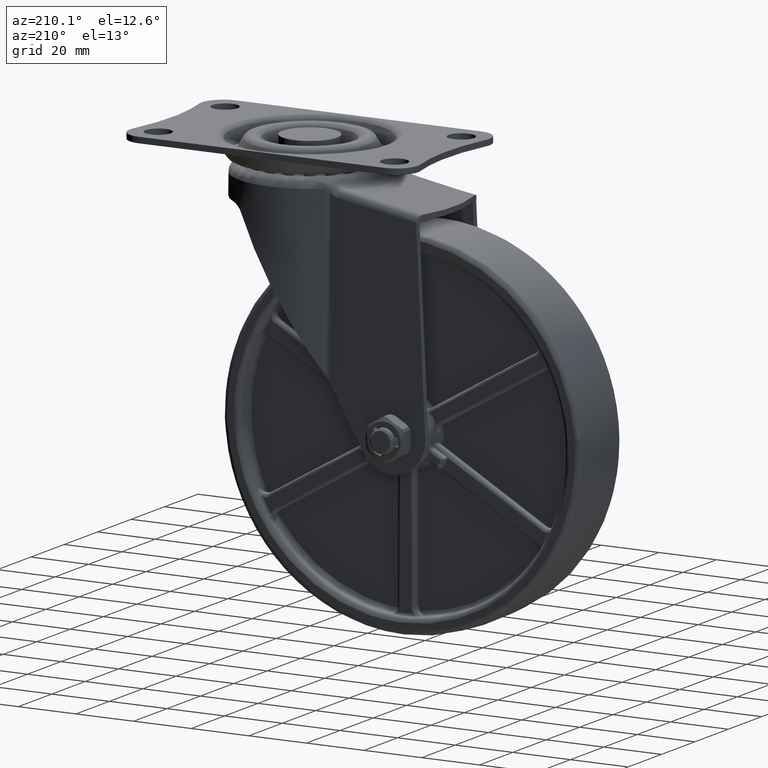
[diagram: clean part render]
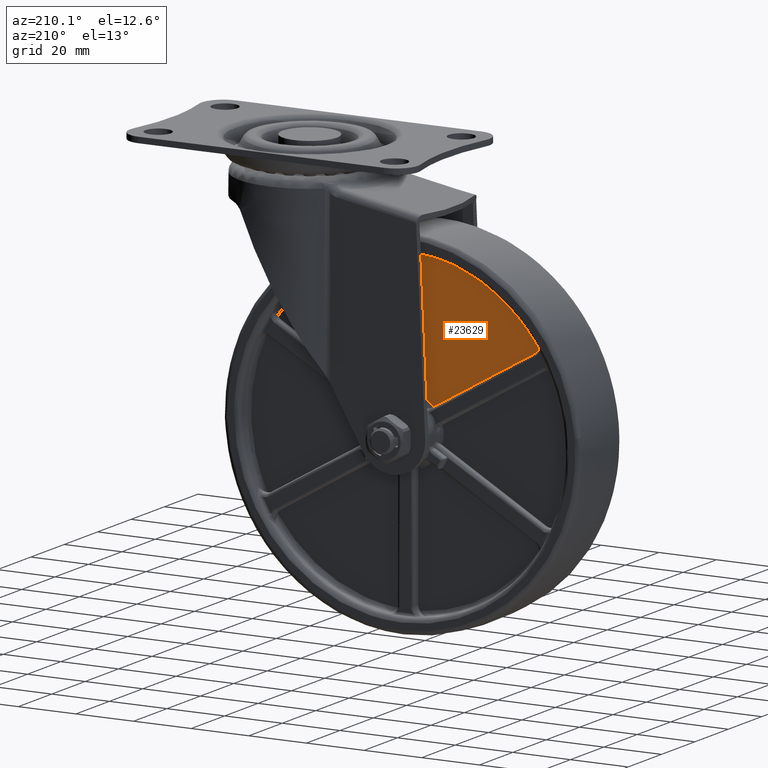
[diagram: same view with one face highlighted and labeled with its STEP entity id]
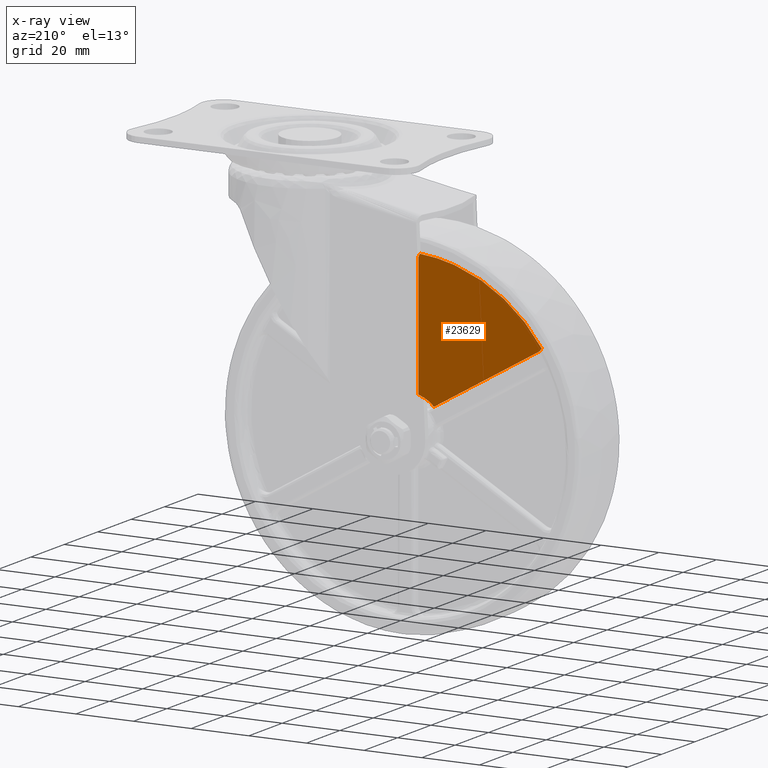
[diagram: x-ray of the same camera — body ghosted, the highlighted face saturated]
A machine part, auxiliary view. The second image highlights one B-rep face of the part: STEP entity #23629.
The next image is the same camera in x-ray: the body ghosted, the highlighted face saturated — about 0% of this face is hidden behind the body in this view.
In plain terms, the highlighted face is a freeform B-spline surface patch.
Its self-contained STEP definition (entity closure, byte-faithful):
#22246=CARTESIAN_POINT('',(-42.544251821324558,7.500000000000000,-28.606996052410651));
#22247=VERTEX_POINT('',#22246);
#22280=CARTESIAN_POINT('',(-42.0,7.500000000000000,-30.330162000000001));
#22281=VERTEX_POINT('',#22280);
#22287=CARTESIAN_POINT('',(-42.544251821324458,7.500000000000000,-28.606996052410580));
#22288=CARTESIAN_POINT('',(-41.999999999999993,7.500000000000000,-29.382629659161051));
#22289=CARTESIAN_POINT('',(-41.999999999999993,7.500000000000000,-30.330162000000001));
#22297=(BOUNDED_CURVE()B_SPLINE_CURVE(2,(#22287,#22288,#22289),.UNSPECIFIED.,.F.,.U.)CURVE()GEOMETRIC_REPRESENTATION_ITEM()QUASI_UNIFORM_CURVE()RATIONAL_B_SPLINE_CURVE((1.0,0.953567702427358,1.0))REPRESENTATION_ITEM(''));
#22298=EDGE_CURVE('',#22247,#22281,#22297,.T.);
#22384=CARTESIAN_POINT('',(-42.0,7.500000000000000,-72.006294006116804));
#22385=VERTEX_POINT('',#22384);
#22400=CARTESIAN_POINT('',(-42.0,7.500000000000000,-30.330162000000001));
#22401=CARTESIAN_POINT('',(-42.0,7.500000000000000,-72.006294006116804));
#22402=QUASI_UNIFORM_CURVE('',1,(#22400,#22401),.UNSPECIFIED.,.F.,.U.);
#22403=EDGE_CURVE('',#22281,#22385,#22402,.T.);
#22525=CARTESIAN_POINT('',(-83.546430423103388,7.500000000000000,-54.317004788646798));
#22526=VERTEX_POINT('',#22525);
#22533=CARTESIAN_POINT('',(-84.766609997989789,7.500000000000000,-52.984085911529199));
#22534=VERTEX_POINT('',#22533);
#22569=CARTESIAN_POINT('',(-83.546430423103388,7.500000000000000,-54.317004788646813));
#22570=CARTESIAN_POINT('',(-84.367017501177230,7.500000000000000,-53.843238618227346));
#22571=CARTESIAN_POINT('',(-84.766609997989860,7.500000000000000,-52.984085911529228));
#22579=(BOUNDED_CURVE()B_SPLINE_CURVE(2,(#22569,#22570,#22571),.UNSPECIFIED.,.F.,.U.)CURVE()GEOMETRIC_REPRESENTATION_ITEM()QUASI_UNIFORM_CURVE()RATIONAL_B_SPLINE_CURVE((1.0,0.953567702427362,1.0))REPRESENTATION_ITEM(''));
#22580=EDGE_CURVE('',#22526,#22534,#22579,.T.);
#22623=CARTESIAN_POINT('',(-47.453841374332612,7.500000000000000,-75.155070791705199));
#22624=VERTEX_POINT('',#22623);
#22639=CARTESIAN_POINT('',(-47.453841374332612,7.500000000000000,-75.155070791705199));
#22640=CARTESIAN_POINT('',(-83.546430423103388,7.500000000000000,-54.317004788646798));
#22641=QUASI_UNIFORM_CURVE('',1,(#22639,#22640),.UNSPECIFIED.,.F.,.U.);
#22642=EDGE_CURVE('',#22624,#22526,#22641,.T.);
#23472=CARTESIAN_POINT('',(-47.453841374332548,7.500000000000000,-75.155070791705256));
#23473=CARTESIAN_POINT('',(-45.159735972511477,7.500000000000000,-72.831024334400709));
#23474=CARTESIAN_POINT('',(-42.000000000000007,7.500000000000000,-72.006294006116761));
#23482=(BOUNDED_CURVE()B_SPLINE_CURVE(2,(#23472,#23473,#23474),.UNSPECIFIED.,.F.,.U.)CURVE()GEOMETRIC_REPRESENTATION_ITEM()QUASI_UNIFORM_CURVE()RATIONAL_B_SPLINE_CURVE((1.0,0.964227549218728,1.0))REPRESENTATION_ITEM(''));
#23483=EDGE_CURVE('',#22624,#22385,#23482,.T.);
#23604=CARTESIAN_POINT('',(-86.902801281574710,7.500000000000000,-26.281920412664519));
#23605=CARTESIAN_POINT('',(-86.902801281574710,7.500000000000000,-77.480144766762450));
#23606=CARTESIAN_POINT('',(-39.863806804598610,7.500000000000000,-26.281920412664519));
#23607=CARTESIAN_POINT('',(-39.863806804598610,7.500000000000000,-77.480144766762450));
#23608=B_SPLINE_SURFACE_WITH_KNOTS('',1,1,((#23604,#23606),(#23605,#23607)),.UNSPECIFIED.,.F.,.F.,.U.,(2,2),(2,2),(0.0,51.198224354097931),(0.0,47.038994476976100),.UNSPECIFIED.);
#23609=ORIENTED_EDGE('',*,*,#22642,.T.);
#23610=ORIENTED_EDGE('',*,*,#22580,.T.);
#23611=CARTESIAN_POINT('',(-84.766609997989761,7.500000000000000,-52.984085911529263));
#23612=CARTESIAN_POINT('',(-69.680903676458314,7.499999999999999,-30.359116010247856));
#23613=CARTESIAN_POINT('',(-42.544251821324593,7.500000000000000,-28.606996052410629));
#23621=(BOUNDED_CURVE()B_SPLINE_CURVE(2,(#23611,#23612,#23613),.UNSPECIFIED.,.F.,.U.)CURVE()GEOMETRIC_REPRESENTATION_ITEM()QUASI_UNIFORM_CURVE()RATIONAL_B_SPLINE_CURVE((1.0,0.896442060182990,1.0))REPRESENTATION_ITEM(''));
#23622=EDGE_CURVE('',#22534,#22247,#23621,.T.);
#23623=ORIENTED_EDGE('',*,*,#23622,.T.);
#23624=ORIENTED_EDGE('',*,*,#22298,.T.);
#23625=ORIENTED_EDGE('',*,*,#22403,.T.);
#23626=ORIENTED_EDGE('',*,*,#23483,.F.);
#23627=EDGE_LOOP('',(#23609,#23610,#23623,#23624,#23625,#23626));
#23628=FACE_OUTER_BOUND('',#23627,.T.);
#23629=ADVANCED_FACE('',(#23628),#23608,.F.);